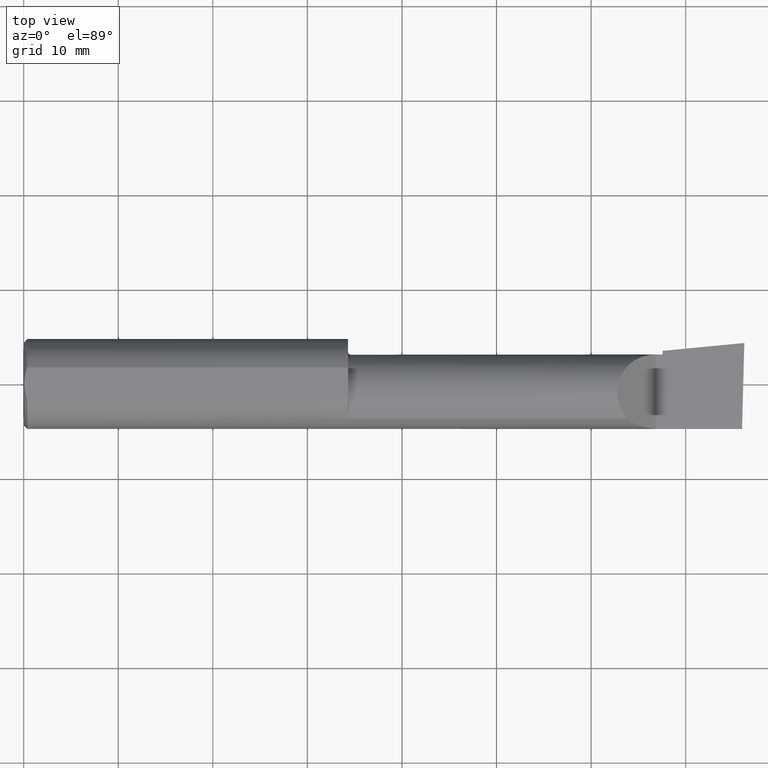
[diagram: clean part render]
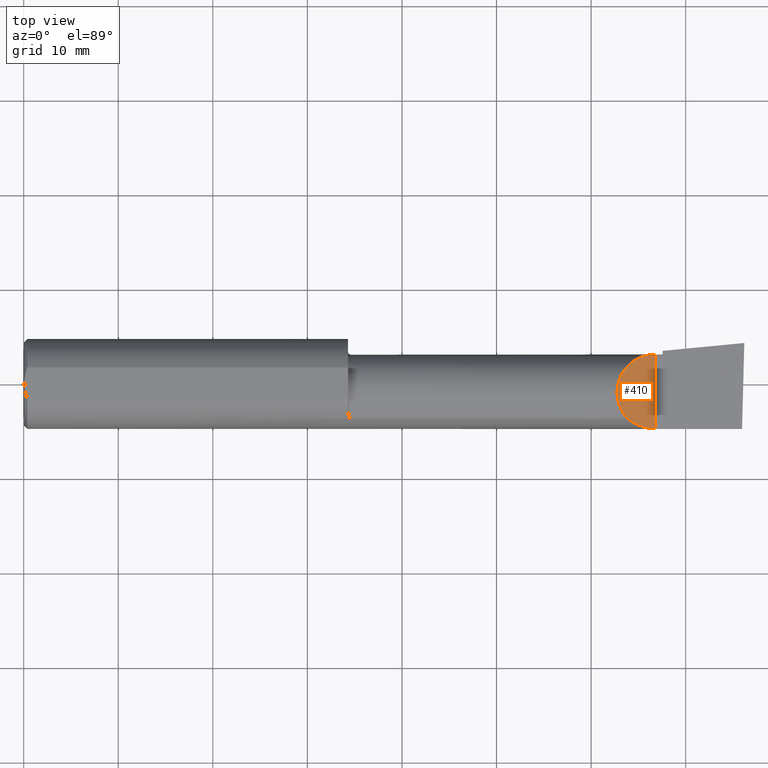
[diagram: same view with one face highlighted and labeled with its STEP entity id]
A machine part, top view. The second image highlights one B-rep face of the part: STEP entity #410.
In plain terms, the highlighted planar face has unit normal (-0.7071, 0, -0.7071).
Its self-contained STEP definition (entity closure, byte-faithful):
#4 = FACE_OUTER_BOUND ( 'NONE', #253, .T. ) ;
#17 = CARTESIAN_POINT ( 'NONE',  ( 2.629999999999999893, 0.1226499999999998147, -1.592040838891560883E-17 ) ) ;
#20 = ORIENTED_EDGE ( 'NONE', *, *, #420, .T. ) ;
#52 = DIRECTION ( 'NONE',  ( -0.7071067811865516806, 0.0000000000000000000, 0.7071067811865434649 ) ) ;
#66 = CARTESIAN_POINT ( 'NONE',  ( 2.629999999999999893, -0.1873499999999999888, -1.592040838891560883E-17 ) ) ;
#68 = CARTESIAN_POINT ( 'NONE',  ( 2.586590019116435712, -0.1873500000000000165, 0.04340998088356372991 ) ) ;
#76 = ORIENTED_EDGE ( 'NONE', *, *, #597, .F. ) ;
#86 = DIRECTION ( 'NONE',  ( -0.7071067811865434649, 0.0000000000000000000, -0.7071067811865516806 ) ) ;
#124 = CARTESIAN_POINT ( 'NONE',  ( 2.511965325165094853, -0.1454917112299475568, 0.1180346748349042352 ) ) ;
#150 = DIRECTION ( 'NONE',  ( -0.0000000000000000000, 1.000000000000000000, -0.0000000000000000000 ) ) ;
#161 =( BOUNDED_CURVE ( )  B_SPLINE_CURVE ( 3, ( #66, #68, #311, #124 ),
 .UNSPECIFIED., .F., .F. ) 
 B_SPLINE_CURVE_WITH_KNOTS ( ( 4, 4 ),
 ( 4.712388980384689674, 5.393970886271879372 ),
 .UNSPECIFIED. ) 
 CURVE ( )  GEOMETRIC_REPRESENTATION_ITEM ( )  RATIONAL_B_SPLINE_CURVE ( ( 1.000000000000000000, 0.9616603987079558324, 0.9616603987079558324, 1.000000000000000000 ) ) 
 REPRESENTATION_ITEM ( '' )  );
#168 = AXIS2_PLACEMENT_3D ( 'NONE', #259, #86, #52 ) ;
#184 = CARTESIAN_POINT ( 'NONE',  ( 2.467758842172327327, 0.1226500000000000090, 0.1622411578276713173 ) ) ;
#253 = EDGE_LOOP ( 'NONE', ( #343, #76, #20 ) ) ;
#254 = VERTEX_POINT ( 'NONE', #579 ) ;
#259 = CARTESIAN_POINT ( 'NONE',  ( 2.629999999999999893, -0.2500000000000000555, -1.592040838891560883E-17 ) ) ;
#268 = CARTESIAN_POINT ( 'NONE',  ( 2.402393788885674120, -0.02584108761840401072, 0.2276062111143233868 ) ) ;
#311 = CARTESIAN_POINT ( 'NONE',  ( 2.545676520271628718, -0.1728409665178091414, 0.08432347972837085648 ) ) ;
#343 = ORIENTED_EDGE ( 'NONE', *, *, #475, .F. ) ;
#380 = CARTESIAN_POINT ( 'NONE',  ( 2.629999999999999893, -0.2500000000000000555, -1.592040838891560883E-17 ) ) ;
#383 = VERTEX_POINT ( 'NONE', #533 ) ;
#410 = ADVANCED_FACE ( 'NONE', ( #4 ), #447, .F. ) ;
#420 = EDGE_CURVE ( 'NONE', #254, #383, #555, .T. ) ;
#443 = CARTESIAN_POINT ( 'NONE',  ( 2.511965325165094853, -0.1454917112299475568, 0.1180346748349042352 ) ) ;
#447 = PLANE ( 'NONE',  #168 ) ;
#474 = VERTEX_POINT ( 'NONE', #507 ) ;
#475 = EDGE_CURVE ( 'NONE', #474, #383, #476, .T. ) ;
#476 =( BOUNDED_CURVE ( )  B_SPLINE_CURVE ( 3, ( #443, #268, #184, #17 ),
 .UNSPECIFIED., .F., .F. ) 
 B_SPLINE_CURVE_WITH_KNOTS ( ( 4, 4 ),
 ( 5.541729662751376573, 7.853981633974482790 ),
 .UNSPECIFIED. ) 
 CURVE ( )  GEOMETRIC_REPRESENTATION_ITEM ( )  RATIONAL_B_SPLINE_CURVE ( ( 1.000000000000000000, 0.6019254882129692064, 0.6019254882129692064, 1.000000000000000000 ) ) 
 REPRESENTATION_ITEM ( '' )  );
#507 = CARTESIAN_POINT ( 'NONE',  ( 2.511965325165094853, -0.1454917112299475568, 0.1180346748349042352 ) ) ;
#533 = CARTESIAN_POINT ( 'NONE',  ( 2.629999999999999893, 0.1226499999999998147, -1.592040838891560883E-17 ) ) ;
#541 = VECTOR ( 'NONE', #150, 39.37007874015748143 ) ;
#555 = LINE ( 'NONE', #380, #541 ) ;
#579 = CARTESIAN_POINT ( 'NONE',  ( 2.629999999999999893, -0.1873499999999999888, -1.592040838891560883E-17 ) ) ;
#597 = EDGE_CURVE ( 'NONE', #254, #474, #161, .T. ) ;